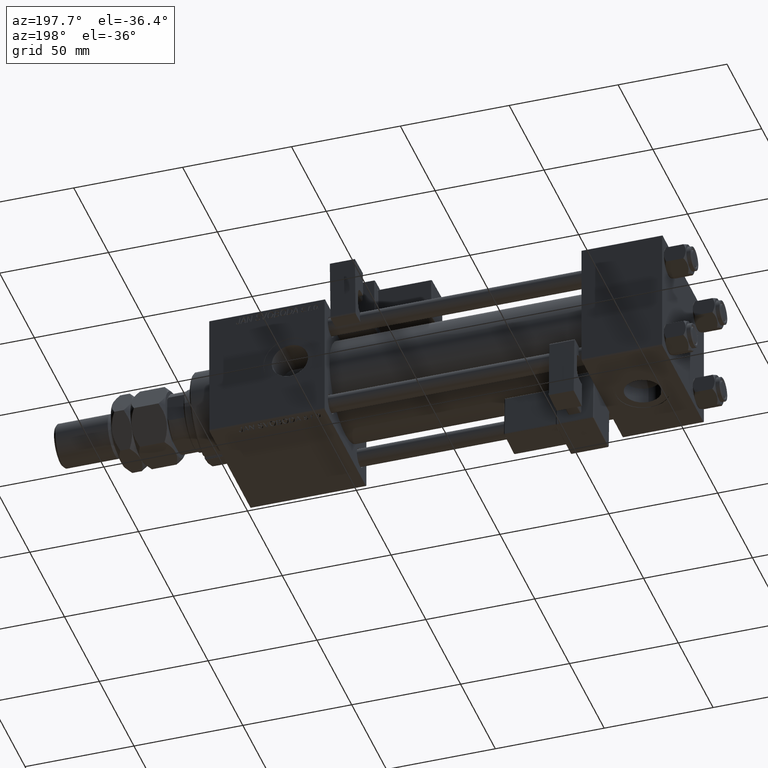
[diagram: clean part render]
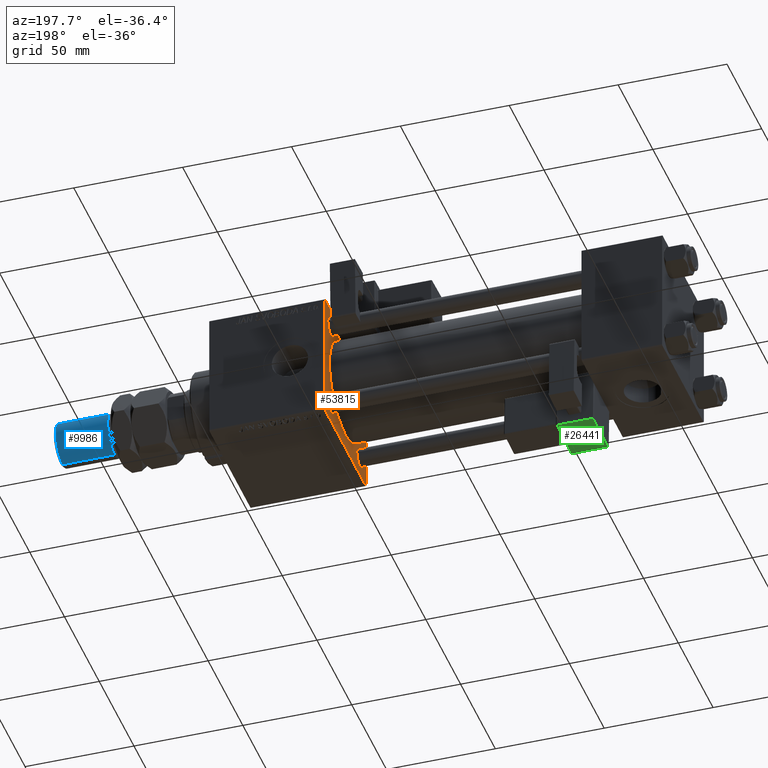
[diagram: same view with three faces highlighted in distinct colors, each labeled with its STEP entity id]
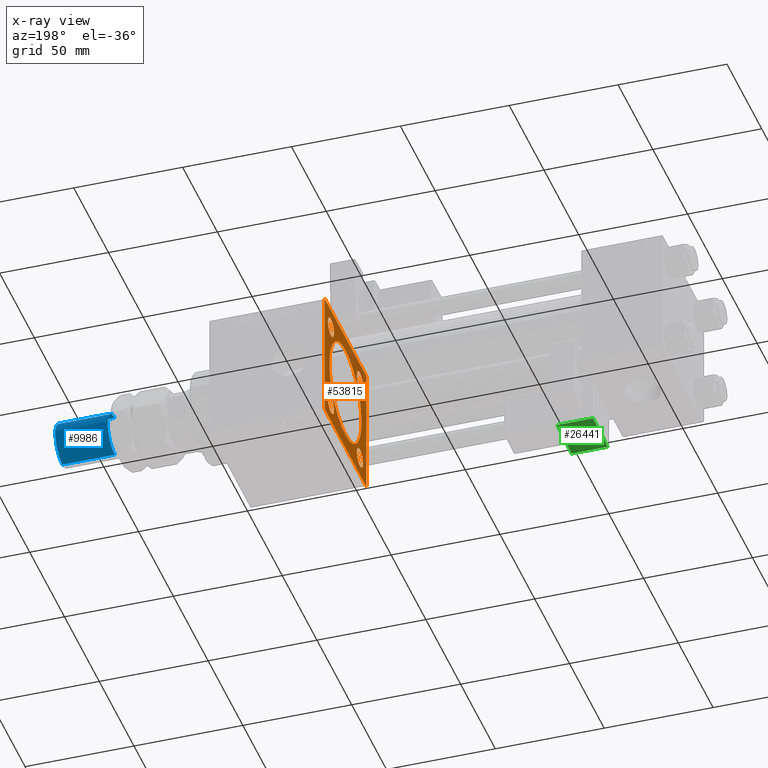
[diagram: x-ray of the same camera — body ghosted, the three highlighted faces saturated]
A machine part, auxiliary view with three faces highlighted in distinct colors.
The next image is the same camera in x-ray (body ghosted, the three faces saturated) — at least one of them is partly hidden behind the body in this view.
Their STEP definitions:

[orange] entity #53815 — the highlighted planar face has unit normal (-1, 0, 0).
#613 = EDGE_CURVE ( 'NONE', #49047, #7869, #16045, .T. ) ;
#625 = AXIS2_PLACEMENT_3D ( 'NONE', #44770, #40504, #18142 ) ;
#1194 = AXIS2_PLACEMENT_3D ( 'NONE', #30795, #35316, #43279 ) ;
#1485 = VERTEX_POINT ( 'NONE', #46100 ) ;
#2817 = EDGE_CURVE ( 'NONE', #4272, #24970, #21919, .T. ) ;
#3792 = DIRECTION ( 'NONE',  ( 1.000000000000000000, 0.000000000000000000, 0.000000000000000000 ) ) ;
#4054 = ORIENTED_EDGE ( 'NONE', *, *, #27325, .T. ) ;
#4272 = VERTEX_POINT ( 'NONE', #20872 ) ;
#4555 = EDGE_CURVE ( 'NONE', #35804, #6162, #36963, .T. ) ;
#4601 = DIRECTION ( 'NONE',  ( 0.000000000000000000, 0.000000000000000000, 1.000000000000000000 ) ) ;
#4845 = ORIENTED_EDGE ( 'NONE', *, *, #18101, .T. ) ;
#5835 = CARTESIAN_POINT ( 'NONE',  ( 155.0000000000000000, -29.75000000000001066, 29.75000000000001066 ) ) ;
#5896 = FACE_OUTER_BOUND ( 'NONE', #54386, .T. ) ;
#5929 = LINE ( 'NONE', #23468, #48226 ) ;
#5944 = DIRECTION ( 'NONE',  ( 0.000000000000000000, 0.000000000000000000, -1.000000000000000000 ) ) ;
#6123 = ORIENTED_EDGE ( 'NONE', *, *, #12498, .T. ) ;
#6162 = VERTEX_POINT ( 'NONE', #18733 ) ;
#6341 = ORIENTED_EDGE ( 'NONE', *, *, #48110, .T. ) ;
#6441 = DIRECTION ( 'NONE',  ( -0.000000000000000000, 0.000000000000000000, 1.000000000000000000 ) ) ;
#6905 = CIRCLE ( 'NONE', #625, 4.500000000000007105 ) ;
#6947 = CARTESIAN_POINT ( 'NONE',  ( 155.0000000000000000, 20.84999999999999787, 20.85000000000000142 ) ) ;
#7580 = EDGE_CURVE ( 'NONE', #16512, #29545, #5929, .T. ) ;
#7759 = ORIENTED_EDGE ( 'NONE', *, *, #56009, .T. ) ;
#7865 = CARTESIAN_POINT ( 'NONE',  ( 155.0000000000000000, 29.50000000000000000, -29.99999999999999289 ) ) ;
#7869 = VERTEX_POINT ( 'NONE', #49197 ) ;
#8702 = DIRECTION ( 'NONE',  ( 0.000000000000000000, -1.000000000000000000, -1.156482317317871478E-16 ) ) ;
#9546 = DIRECTION ( 'NONE',  ( 0.000000000000000000, 0.000000000000000000, 1.000000000000000000 ) ) ;
#10148 = PLANE ( 'NONE',  #35474 ) ;
#10244 = CIRCLE ( 'NONE', #1194, 4.500000000000007105 ) ;
#10595 = VERTEX_POINT ( 'NONE', #48592 ) ;
#10973 = FACE_BOUND ( 'NONE', #20288, .T. ) ;
#11675 = ORIENTED_EDGE ( 'NONE', *, *, #33896, .T. ) ;
#11850 = EDGE_CURVE ( 'NONE', #30179, #20354, #42985, .T. ) ;
#12498 = EDGE_CURVE ( 'NONE', #36891, #25026, #43022, .T. ) ;
#13376 = CARTESIAN_POINT ( 'NONE',  ( 155.0000000000000000, 30.00000000000000000, 30.00000000000000000 ) ) ;
#14273 = EDGE_LOOP ( 'NONE', ( #50300, #45702 ) ) ;
#14596 = VERTEX_POINT ( 'NONE', #21693 ) ;
#15153 = ORIENTED_EDGE ( 'NONE', *, *, #7580, .T. ) ;
#15423 = DIRECTION ( 'NONE',  ( -0.000000000000000000, 0.7071067811865474617, 0.7071067811865474617 ) ) ;
#15632 = CARTESIAN_POINT ( 'NONE',  ( 155.0000000000000000, -30.00000000000000000, 29.50000000000001776 ) ) ;
#15878 = DIRECTION ( 'NONE',  ( 1.000000000000000000, -0.000000000000000000, 0.000000000000000000 ) ) ;
#16045 = LINE ( 'NONE', #23992, #39891 ) ;
#16512 = VERTEX_POINT ( 'NONE', #44412 ) ;
#16780 = CIRCLE ( 'NONE', #53863, 4.500000000000007105 ) ;
#16812 = CARTESIAN_POINT ( 'NONE',  ( 155.0000000000000000, -2.602085213965210642E-15, 0.000000000000000000 ) ) ;
#16825 = ORIENTED_EDGE ( 'NONE', *, *, #4555, .T. ) ;
#16927 = CARTESIAN_POINT ( 'NONE',  ( 155.0000000000000000, -20.84999999999999076, -20.85000000000000497 ) ) ;
#17778 = LINE ( 'NONE', #54969, #51626 ) ;
#18101 = EDGE_CURVE ( 'NONE', #7869, #19054, #35756, .T. ) ;
#18142 = DIRECTION ( 'NONE',  ( 0.000000000000000000, 0.000000000000000000, 1.000000000000000000 ) ) ;
#18733 = CARTESIAN_POINT ( 'NONE',  ( 155.0000000000000000, -29.50000000000002487, 29.99999999999999289 ) ) ;
#18774 = CARTESIAN_POINT ( 'NONE',  ( 155.0000000000000000, -20.84999999999999076, 16.34999999999999787 ) ) ;
#19054 = VERTEX_POINT ( 'NONE', #43514 ) ;
#20288 = EDGE_LOOP ( 'NONE', ( #6341, #27327 ) ) ;
#20354 = VERTEX_POINT ( 'NONE', #18774 ) ;
#20686 = DIRECTION ( 'NONE',  ( 0.000000000000000000, 0.000000000000000000, -1.000000000000000000 ) ) ;
#20872 = CARTESIAN_POINT ( 'NONE',  ( 155.0000000000000000, 20.84999999999999787, 16.34999999999999432 ) ) ;
#20906 = DIRECTION ( 'NONE',  ( 1.000000000000000000, -0.000000000000000000, 0.000000000000000000 ) ) ;
#21693 = CARTESIAN_POINT ( 'NONE',  ( 155.0000000000000000, 20.84999999999999787, -25.35000000000000853 ) ) ;
#21773 = VECTOR ( 'NONE', #49057, 1000.000000000000114 ) ;
#21919 = CIRCLE ( 'NONE', #43634, 4.500000000000007105 ) ;
#22460 = ORIENTED_EDGE ( 'NONE', *, *, #27678, .T. ) ;
#23344 = VECTOR ( 'NONE', #8702, 1000.000000000000000 ) ;
#23468 = CARTESIAN_POINT ( 'NONE',  ( 155.0000000000000000, 29.75000000000001776, 29.75000000000001776 ) ) ;
#23992 = CARTESIAN_POINT ( 'NONE',  ( 155.0000000000000000, 30.00000000000000000, -29.99999999999999289 ) ) ;
#24970 = VERTEX_POINT ( 'NONE', #38584 ) ;
#25026 = VERTEX_POINT ( 'NONE', #38017 ) ;
#25335 = ORIENTED_EDGE ( 'NONE', *, *, #27134, .T. ) ;
#26117 = CARTESIAN_POINT ( 'NONE',  ( 155.0000000000000000, -20.84999999999999076, 20.85000000000000497 ) ) ;
#26218 = CARTESIAN_POINT ( 'NONE',  ( 155.0000000000000000, -29.75000000000001776, -29.75000000000001776 ) ) ;
#26930 = DIRECTION ( 'NONE',  ( 1.000000000000000000, -0.000000000000000000, 0.000000000000000000 ) ) ;
#27102 = AXIS2_PLACEMENT_3D ( 'NONE', #50387, #20906, #46144 ) ;
#27134 = EDGE_CURVE ( 'NONE', #48591, #49047, #41717, .T. ) ;
#27325 = EDGE_CURVE ( 'NONE', #29545, #48591, #52457, .T. ) ;
#27327 = ORIENTED_EDGE ( 'NONE', *, *, #2817, .T. ) ;
#27569 = AXIS2_PLACEMENT_3D ( 'NONE', #16812, #3792, #55909 ) ;
#27678 = EDGE_CURVE ( 'NONE', #20354, #30179, #16780, .T. ) ;
#27745 = DIRECTION ( 'NONE',  ( 1.000000000000000000, 0.000000000000000000, 0.000000000000000000 ) ) ;
#27887 = ORIENTED_EDGE ( 'NONE', *, *, #613, .T. ) ;
#28891 = CIRCLE ( 'NONE', #27102, 4.500000000000007105 ) ;
#29545 = VERTEX_POINT ( 'NONE', #43435 ) ;
#30179 = VERTEX_POINT ( 'NONE', #41894 ) ;
#30456 = EDGE_CURVE ( 'NONE', #1485, #10595, #52021, .T. ) ;
#30664 = DIRECTION ( 'NONE',  ( 0.000000000000000000, 0.000000000000000000, -1.000000000000000000 ) ) ;
#30795 = CARTESIAN_POINT ( 'NONE',  ( 155.0000000000000000, -20.84999999999999076, -20.85000000000000497 ) ) ;
#31663 = FACE_BOUND ( 'NONE', #38757, .T. ) ;
#33165 = DIRECTION ( 'NONE',  ( 0.000000000000000000, 0.000000000000000000, 1.000000000000000000 ) ) ;
#33896 = EDGE_CURVE ( 'NONE', #10595, #1485, #40393, .T. ) ;
#34735 = CARTESIAN_POINT ( 'NONE',  ( 155.0000000000000000, 30.00000000000000000, -29.49999999999997868 ) ) ;
#34809 = EDGE_CURVE ( 'NONE', #46842, #14596, #6905, .T. ) ;
#34989 = AXIS2_PLACEMENT_3D ( 'NONE', #37081, #27745, #5944 ) ;
#35316 = DIRECTION ( 'NONE',  ( 1.000000000000000000, -0.000000000000000000, 0.000000000000000000 ) ) ;
#35449 = DIRECTION ( 'NONE',  ( 1.000000000000000000, -0.000000000000000000, 0.000000000000000000 ) ) ;
#35474 = AXIS2_PLACEMENT_3D ( 'NONE', #49501, #45259, #6441 ) ;
#35650 = FACE_BOUND ( 'NONE', #39125, .T. ) ;
#35756 = LINE ( 'NONE', #26218, #21773 ) ;
#35804 = VERTEX_POINT ( 'NONE', #15632 ) ;
#36757 = FACE_BOUND ( 'NONE', #14273, .T. ) ;
#36891 = VERTEX_POINT ( 'NONE', #41363 ) ;
#36963 = LINE ( 'NONE', #5835, #44465 ) ;
#37081 = CARTESIAN_POINT ( 'NONE',  ( 155.0000000000000000, -2.602085213965210642E-15, 0.000000000000000000 ) ) ;
#37891 = EDGE_CURVE ( 'NONE', #16512, #6162, #52300, .T. ) ;
#38017 = CARTESIAN_POINT ( 'NONE',  ( 155.0000000000000000, -20.84999999999999076, -16.34999999999999787 ) ) ;
#38584 = CARTESIAN_POINT ( 'NONE',  ( 155.0000000000000000, 20.84999999999999787, 25.35000000000000853 ) ) ;
#38757 = EDGE_LOOP ( 'NONE', ( #11675, #41661 ) ) ;
#39125 = EDGE_LOOP ( 'NONE', ( #41104, #22460 ) ) ;
#39414 = AXIS2_PLACEMENT_3D ( 'NONE', #16927, #40131, #9546 ) ;
#39686 = CARTESIAN_POINT ( 'NONE',  ( 155.0000000000000000, 20.84999999999999787, -20.85000000000000142 ) ) ;
#39891 = VECTOR ( 'NONE', #54289, 1000.000000000000000 ) ;
#40131 = DIRECTION ( 'NONE',  ( 1.000000000000000000, -0.000000000000000000, 0.000000000000000000 ) ) ;
#40393 = CIRCLE ( 'NONE', #34989, 23.00000000000000000 ) ;
#40504 = DIRECTION ( 'NONE',  ( 1.000000000000000000, -0.000000000000000000, 0.000000000000000000 ) ) ;
#40751 = DIRECTION ( 'NONE',  ( 0.000000000000000000, 0.7071067811865474617, -0.7071067811865474617 ) ) ;
#40883 = CARTESIAN_POINT ( 'NONE',  ( 155.0000000000000000, 29.74999999999999645, -29.74999999999999645 ) ) ;
#41104 = ORIENTED_EDGE ( 'NONE', *, *, #11850, .T. ) ;
#41229 = DIRECTION ( 'NONE',  ( 0.000000000000000000, 0.000000000000000000, 1.000000000000000000 ) ) ;
#41363 = CARTESIAN_POINT ( 'NONE',  ( 155.0000000000000000, -20.84999999999999076, -25.35000000000001208 ) ) ;
#41396 = EDGE_LOOP ( 'NONE', ( #7759, #6123 ) ) ;
#41661 = ORIENTED_EDGE ( 'NONE', *, *, #30456, .T. ) ;
#41717 = LINE ( 'NONE', #40883, #42968 ) ;
#41894 = CARTESIAN_POINT ( 'NONE',  ( 155.0000000000000000, -20.84999999999999076, 25.35000000000001208 ) ) ;
#42054 = VECTOR ( 'NONE', #30664, 1000.000000000000000 ) ;
#42361 = EDGE_CURVE ( 'NONE', #14596, #46842, #46895, .T. ) ;
#42968 = VECTOR ( 'NONE', #44874, 1000.000000000000114 ) ;
#42985 = CIRCLE ( 'NONE', #49302, 4.500000000000007105 ) ;
#43022 = CIRCLE ( 'NONE', #39414, 4.500000000000007105 ) ;
#43279 = DIRECTION ( 'NONE',  ( 0.000000000000000000, 0.000000000000000000, 1.000000000000000000 ) ) ;
#43435 = CARTESIAN_POINT ( 'NONE',  ( 155.0000000000000000, 30.00000000000000000, 29.50000000000002487 ) ) ;
#43514 = CARTESIAN_POINT ( 'NONE',  ( 155.0000000000000000, -30.00000000000000000, -29.50000000000001066 ) ) ;
#43634 = AXIS2_PLACEMENT_3D ( 'NONE', #6947, #50005, #41229 ) ;
#44412 = CARTESIAN_POINT ( 'NONE',  ( 155.0000000000000000, 29.50000000000002487, 30.00000000000000000 ) ) ;
#44465 = VECTOR ( 'NONE', #15423, 1000.000000000000114 ) ;
#44770 = CARTESIAN_POINT ( 'NONE',  ( 155.0000000000000000, 20.84999999999999787, -20.85000000000000142 ) ) ;
#44874 = DIRECTION ( 'NONE',  ( -0.000000000000000000, -0.7071067811865474617, -0.7071067811865474617 ) ) ;
#45259 = DIRECTION ( 'NONE',  ( -1.000000000000000000, 0.000000000000000000, -0.000000000000000000 ) ) ;
#45702 = ORIENTED_EDGE ( 'NONE', *, *, #42361, .T. ) ;
#46100 = CARTESIAN_POINT ( 'NONE',  ( 155.0000000000000000, 2.146024240737016609E-16, -23.00000000000000000 ) ) ;
#46144 = DIRECTION ( 'NONE',  ( 0.000000000000000000, 0.000000000000000000, 1.000000000000000000 ) ) ;
#46551 = ORIENTED_EDGE ( 'NONE', *, *, #50471, .F. ) ;
#46842 = VERTEX_POINT ( 'NONE', #49319 ) ;
#46895 = CIRCLE ( 'NONE', #52319, 4.500000000000007105 ) ;
#47372 = ORIENTED_EDGE ( 'NONE', *, *, #37891, .F. ) ;
#47776 = CARTESIAN_POINT ( 'NONE',  ( 155.0000000000000000, 30.00000000000000000, 30.00000000000000000 ) ) ;
#48110 = EDGE_CURVE ( 'NONE', #24970, #4272, #28891, .T. ) ;
#48226 = VECTOR ( 'NONE', #40751, 1000.000000000000114 ) ;
#48591 = VERTEX_POINT ( 'NONE', #34735 ) ;
#48592 = CARTESIAN_POINT ( 'NONE',  ( 155.0000000000000000, -2.602085213965210642E-15, 23.00000000000000000 ) ) ;
#48656 = FACE_BOUND ( 'NONE', #41396, .T. ) ;
#49047 = VERTEX_POINT ( 'NONE', #7865 ) ;
#49057 = DIRECTION ( 'NONE',  ( 0.000000000000000000, -0.7071067811865474617, 0.7071067811865474617 ) ) ;
#49197 = CARTESIAN_POINT ( 'NONE',  ( 155.0000000000000000, -29.50000000000002487, -30.00000000000000000 ) ) ;
#49302 = AXIS2_PLACEMENT_3D ( 'NONE', #26117, #35449, #4601 ) ;
#49319 = CARTESIAN_POINT ( 'NONE',  ( 155.0000000000000000, 20.84999999999999787, -16.34999999999999432 ) ) ;
#49501 = CARTESIAN_POINT ( 'NONE',  ( 155.0000000000000000, 0.000000000000000000, 0.000000000000000000 ) ) ;
#50005 = DIRECTION ( 'NONE',  ( 1.000000000000000000, -0.000000000000000000, 0.000000000000000000 ) ) ;
#50300 = ORIENTED_EDGE ( 'NONE', *, *, #34809, .T. ) ;
#50387 = CARTESIAN_POINT ( 'NONE',  ( 155.0000000000000000, 20.84999999999999787, 20.85000000000000142 ) ) ;
#50438 = CARTESIAN_POINT ( 'NONE',  ( 155.0000000000000000, -20.84999999999999076, 20.85000000000000497 ) ) ;
#50471 = EDGE_CURVE ( 'NONE', #35804, #19054, #17778, .T. ) ;
#51626 = VECTOR ( 'NONE', #20686, 1000.000000000000000 ) ;
#52021 = CIRCLE ( 'NONE', #27569, 23.00000000000000000 ) ;
#52300 = LINE ( 'NONE', #47776, #23344 ) ;
#52319 = AXIS2_PLACEMENT_3D ( 'NONE', #39686, #26930, #53000 ) ;
#52457 = LINE ( 'NONE', #13376, #42054 ) ;
#53000 = DIRECTION ( 'NONE',  ( 0.000000000000000000, 0.000000000000000000, 1.000000000000000000 ) ) ;
#53815 = ADVANCED_FACE ( 'NONE', ( #35650, #10973, #36757, #48656, #31663, #5896 ), #10148, .T. ) ;
#53863 = AXIS2_PLACEMENT_3D ( 'NONE', #50438, #15878, #33165 ) ;
#54289 = DIRECTION ( 'NONE',  ( 0.000000000000000000, -1.000000000000000000, -1.156482317317871478E-16 ) ) ;
#54386 = EDGE_LOOP ( 'NONE', ( #27887, #4845, #46551, #16825, #47372, #15153, #4054, #25335 ) ) ;
#54969 = CARTESIAN_POINT ( 'NONE',  ( 155.0000000000000000, -30.00000000000000000, 29.99999999999999289 ) ) ;
#55909 = DIRECTION ( 'NONE',  ( 0.000000000000000000, 0.000000000000000000, -1.000000000000000000 ) ) ;
#56009 = EDGE_CURVE ( 'NONE', #25026, #36891, #10244, .T. ) ;

[blue] entity #9986 — the highlighted cylindrical surface (edge-blend (fillet) strip) has radius 10 mm, axis along (-1, -0, 0).
#788 = CARTESIAN_POINT ( 'NONE',  ( 10.00000000000000000, 1.224646799147353059E-15, 53.00000000000000711 ) ) ;
#2334 = DIRECTION ( 'NONE',  ( -0.000000000000000000, -0.000000000000000000, -1.000000000000000000 ) ) ;
#5039 = DIRECTION ( 'NONE',  ( -0.000000000000000000, -0.000000000000000000, -1.000000000000000000 ) ) ;
#6771 = EDGE_CURVE ( 'NONE', #28148, #19556, #17462, .T. ) ;
#8682 = DIRECTION ( 'NONE',  ( 0.000000000000000000, 0.000000000000000000, -1.000000000000000000 ) ) ;
#9497 = ORIENTED_EDGE ( 'NONE', *, *, #14588, .T. ) ;
#9667 = ORIENTED_EDGE ( 'NONE', *, *, #6771, .T. ) ;
#9986 = ADVANCED_FACE ( 'NONE', ( #28945 ), #41134, .T. ) ;
#10284 = DIRECTION ( 'NONE',  ( -0.000000000000000000, -0.000000000000000000, -1.000000000000000000 ) ) ;
#13204 = DIRECTION ( 'NONE',  ( 1.000000000000000000, 0.000000000000000000, 0.000000000000000000 ) ) ;
#13873 = ORIENTED_EDGE ( 'NONE', *, *, #47401, .T. ) ;
#13925 = AXIS2_PLACEMENT_3D ( 'NONE', #37151, #2334, #24124 ) ;
#14505 = LINE ( 'NONE', #49079, #42368 ) ;
#14588 = EDGE_CURVE ( 'NONE', #44861, #39644, #54060, .T. ) ;
#17462 = CIRCLE ( 'NONE', #50947, 10.00000000000000000 ) ;
#18324 = DIRECTION ( 'NONE',  ( 1.000000000000000000, 0.000000000000000000, 0.000000000000000000 ) ) ;
#18608 = LINE ( 'NONE', #788, #49660 ) ;
#19556 = VERTEX_POINT ( 'NONE', #42743 ) ;
#19676 = AXIS2_PLACEMENT_3D ( 'NONE', #26217, #8682, #13204 ) ;
#24124 = DIRECTION ( 'NONE',  ( -1.000000000000000000, 0.000000000000000000, 0.000000000000000000 ) ) ;
#26217 = CARTESIAN_POINT ( 'NONE',  ( 0.000000000000000000, 0.000000000000000000, 52.00000000000004974 ) ) ;
#28148 = VERTEX_POINT ( 'NONE', #49665 ) ;
#28945 = FACE_OUTER_BOUND ( 'NONE', #47564, .T. ) ;
#33300 = CARTESIAN_POINT ( 'NONE',  ( 10.00000000000000000, 1.224646799147353059E-15, 52.00000000000004974 ) ) ;
#37151 = CARTESIAN_POINT ( 'NONE',  ( 0.000000000000000000, 0.000000000000000000, 53.00000000000000711 ) ) ;
#38262 = EDGE_CURVE ( 'NONE', #44861, #19556, #14505, .T. ) ;
#39644 = VERTEX_POINT ( 'NONE', #33300 ) ;
#39849 = DIRECTION ( 'NONE',  ( -0.000000000000000000, -0.000000000000000000, 1.000000000000000000 ) ) ;
#41134 = CYLINDRICAL_SURFACE ( 'NONE', #13925, 10.00000000000000000 ) ;
#42368 = VECTOR ( 'NONE', #10284, 1000.000000000000000 ) ;
#42743 = CARTESIAN_POINT ( 'NONE',  ( -10.00000000000000000, 0.000000000000000000, 28.00000000000002487 ) ) ;
#44861 = VERTEX_POINT ( 'NONE', #53404 ) ;
#47401 = EDGE_CURVE ( 'NONE', #39644, #28148, #18608, .T. ) ;
#47564 = EDGE_LOOP ( 'NONE', ( #9497, #13873, #9667, #55537 ) ) ;
#49079 = CARTESIAN_POINT ( 'NONE',  ( -10.00000000000000000, 0.000000000000000000, 53.00000000000000711 ) ) ;
#49660 = VECTOR ( 'NONE', #5039, 1000.000000000000000 ) ;
#49665 = CARTESIAN_POINT ( 'NONE',  ( 10.00000000000000000, 1.224646799147353059E-15, 28.00000000000002487 ) ) ;
#50947 = AXIS2_PLACEMENT_3D ( 'NONE', #51783, #39849, #18324 ) ;
#51783 = CARTESIAN_POINT ( 'NONE',  ( 0.000000000000000000, 0.000000000000000000, 28.00000000000002487 ) ) ;
#53404 = CARTESIAN_POINT ( 'NONE',  ( -10.00000000000000000, 0.000000000000000000, 52.00000000000004974 ) ) ;
#54060 = CIRCLE ( 'NONE', #19676, 10.00000000000000000 ) ;
#55537 = ORIENTED_EDGE ( 'NONE', *, *, #38262, .F. ) ;

[green] entity #26441 — the highlighted planar face has unit normal (0, -0.0353, 0.9994).
#1689 = CARTESIAN_POINT ( 'NONE',  ( -8.250000000000003553, -14.24999999999999822, -1.000000000000000222 ) ) ;
#3224 = LINE ( 'NONE', #46283, #12078 ) ;
#5089 = FACE_OUTER_BOUND ( 'NONE', #44487, .T. ) ;
#5945 = CARTESIAN_POINT ( 'NONE',  ( 8.750000000000003553, -35.25000000000000000, -1.000000000000000222 ) ) ;
#6290 = VECTOR ( 'NONE', #7491, 1000.000000000000000 ) ;
#7472 = DIRECTION ( 'NONE',  ( 1.000000000000000000, -0.000000000000000000, 0.000000000000000000 ) ) ;
#7491 = DIRECTION ( 'NONE',  ( -0.000000000000000000, -1.000000000000000000, -0.000000000000000000 ) ) ;
#8203 = EDGE_CURVE ( 'NONE', #17581, #23363, #3224, .T. ) ;
#10478 = LINE ( 'NONE', #5945, #32443 ) ;
#12078 = VECTOR ( 'NONE', #7472, 1000.000000000000000 ) ;
#16112 = EDGE_CURVE ( 'NONE', #21162, #17581, #33757, .T. ) ;
#16179 = DIRECTION ( 'NONE',  ( -0.000000000000000000, 1.000000000000000000, 0.000000000000000000 ) ) ;
#17581 = VERTEX_POINT ( 'NONE', #1689 ) ;
#18513 = ORIENTED_EDGE ( 'NONE', *, *, #8203, .T. ) ;
#20010 = VECTOR ( 'NONE', #16179, 1000.000000000000000 ) ;
#20324 = CARTESIAN_POINT ( 'NONE',  ( 8.250000000000003553, -35.25000000000000000, -1.000000000000000222 ) ) ;
#21162 = VERTEX_POINT ( 'NONE', #55173 ) ;
#23363 = VERTEX_POINT ( 'NONE', #52090 ) ;
#25040 = LINE ( 'NONE', #50829, #6290 ) ;
#25572 = VERTEX_POINT ( 'NONE', #20324 ) ;
#26441 = ADVANCED_FACE ( 'NONE', ( #5089 ), #31960, .F. ) ;
#30265 = AXIS2_PLACEMENT_3D ( 'NONE', #31138, #40461, #49242 ) ;
#31138 = CARTESIAN_POINT ( 'NONE',  ( 8.750000000000003553, -35.75000000000000000, -1.000000000000000222 ) ) ;
#31960 = PLANE ( 'NONE',  #30265 ) ;
#32443 = VECTOR ( 'NONE', #45593, 1000.000000000000000 ) ;
#32908 = CARTESIAN_POINT ( 'NONE',  ( -8.250000000000003553, -35.75000000000000000, -1.000000000000000222 ) ) ;
#33757 = LINE ( 'NONE', #32908, #20010 ) ;
#40461 = DIRECTION ( 'NONE',  ( 0.000000000000000000, 0.000000000000000000, 1.000000000000000000 ) ) ;
#41058 = EDGE_CURVE ( 'NONE', #23363, #25572, #25040, .T. ) ;
#43512 = EDGE_CURVE ( 'NONE', #25572, #21162, #10478, .T. ) ;
#44487 = EDGE_LOOP ( 'NONE', ( #18513, #50377, #46343, #51411 ) ) ;
#45593 = DIRECTION ( 'NONE',  ( -1.000000000000000000, -0.000000000000000000, 0.000000000000000000 ) ) ;
#46283 = CARTESIAN_POINT ( 'NONE',  ( 8.750000000000003553, -14.24999999999999822, -1.000000000000000222 ) ) ;
#46343 = ORIENTED_EDGE ( 'NONE', *, *, #43512, .T. ) ;
#49242 = DIRECTION ( 'NONE',  ( 1.000000000000000000, 0.000000000000000000, -0.000000000000000000 ) ) ;
#50377 = ORIENTED_EDGE ( 'NONE', *, *, #41058, .T. ) ;
#50829 = CARTESIAN_POINT ( 'NONE',  ( 8.250000000000003553, -35.75000000000000000, -1.000000000000000222 ) ) ;
#51411 = ORIENTED_EDGE ( 'NONE', *, *, #16112, .T. ) ;
#52090 = CARTESIAN_POINT ( 'NONE',  ( 8.250000000000003553, -14.24999999999999822, -1.000000000000000222 ) ) ;
#55173 = CARTESIAN_POINT ( 'NONE',  ( -8.250000000000003553, -35.25000000000000000, -1.000000000000000222 ) ) ;